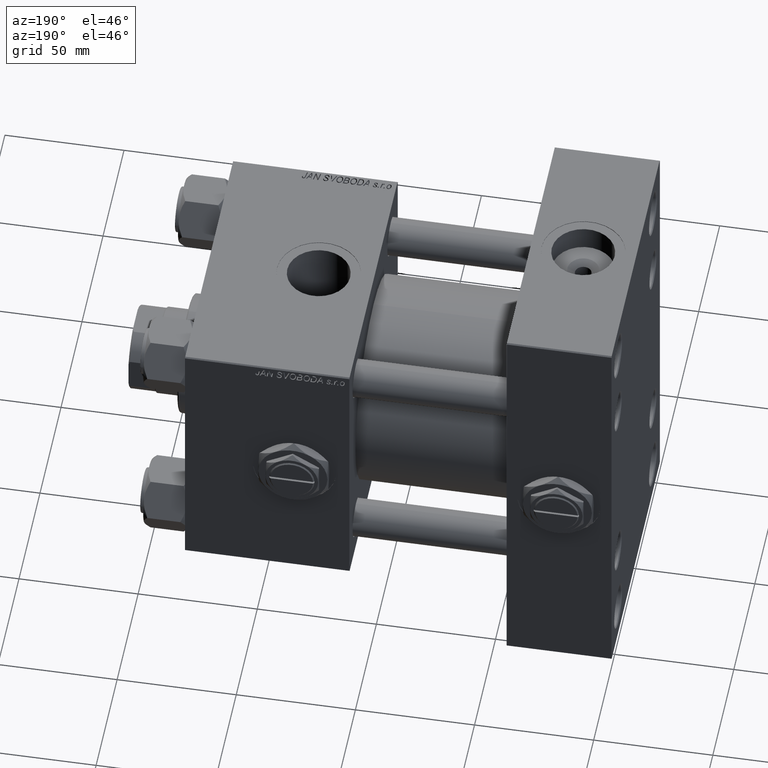
[diagram: clean part render]
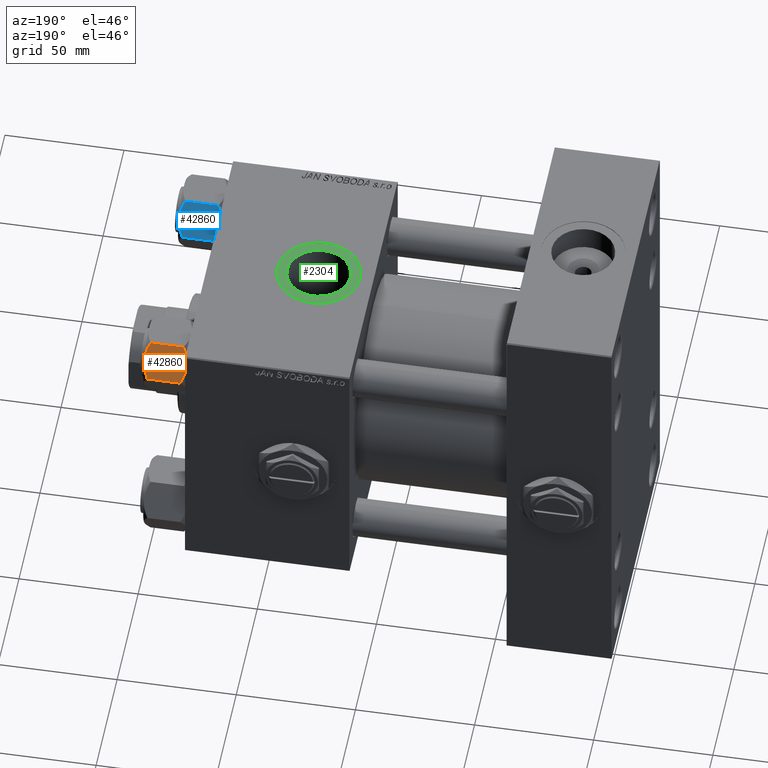
[diagram: same view with three faces highlighted in distinct colors, each labeled with its STEP entity id]
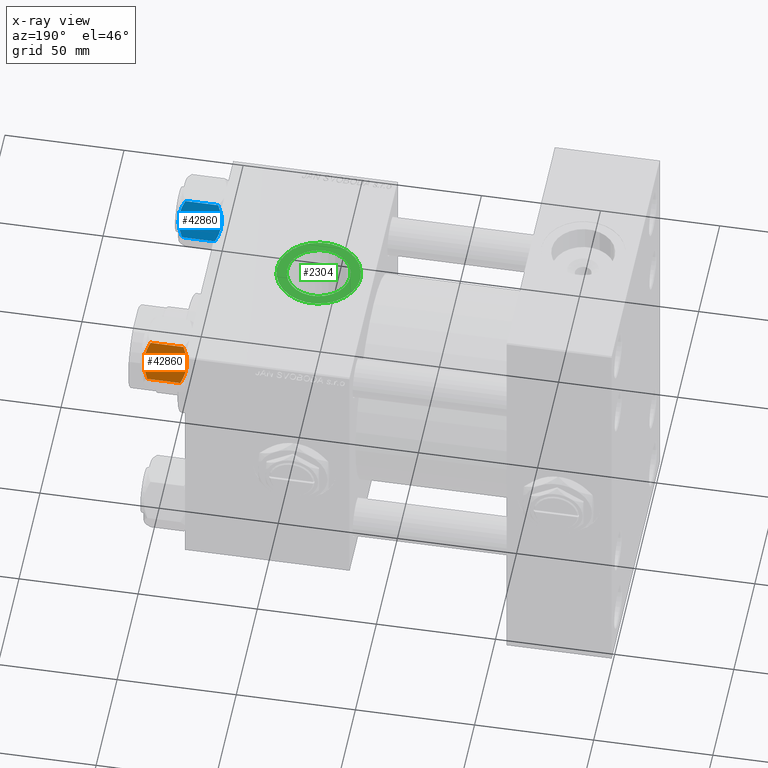
[diagram: x-ray of the same camera — body ghosted, the three highlighted faces saturated]
A machine part, auxiliary view with three faces highlighted in distinct colors.
The next image is the same camera in x-ray (body ghosted, the three faces saturated) — at least one of them is partly hidden behind the body in this view.
Their STEP definitions:

[orange] entity #42860 — the highlighted planar face has unit normal (-0, -0.866, -0.5).
#227 = CARTESIAN_POINT ( 'NONE',  ( 7.810000000000001386, 13.52731680711293905, -1.999999999999998224 ) ) ;
#1528 = DIRECTION ( 'NONE',  ( 0.4999999999999998890, -0.8660254037844385966, 0.000000000000000000 ) ) ;
#2597 = VERTEX_POINT ( 'NONE', #33263 ) ;
#3701 = ORIENTED_EDGE ( 'NONE', *, *, #20594, .F. ) ;
#3955 = LINE ( 'NONE', #19903, #50838 ) ;
#3990 = VERTEX_POINT ( 'NONE', #39805 ) ;
#4371 = VERTEX_POINT ( 'NONE', #27316 ) ;
#4507 = VECTOR ( 'NONE', #25929, 999.9999999999998863 ) ;
#5525 = CARTESIAN_POINT ( 'NONE',  ( 7.903528262322689457, 13.36532110482641045, -2.000000000000000000 ) ) ;
#6125 = B_SPLINE_CURVE_WITH_KNOTS ( 'NONE', 3,
 ( #35774, #51964, #15577, #32054, #48246, #31791, #8386, #39494 ),
 .UNSPECIFIED., .F., .F.,
 ( 4, 2, 2, 4 ),
 ( 0.007890825462474418753, 0.01181022244528552589, 0.01376992093669107686, 0.01572961942809662783 ),
 .UNSPECIFIED. ) ;
#7140 = ORIENTED_EDGE ( 'NONE', *, *, #36234, .F. ) ;
#7462 = CARTESIAN_POINT ( 'NONE',  ( 10.06459418565413166, 9.622245127110598872, -17.61639331488792948 ) ) ;
#8080 = ORIENTED_EDGE ( 'NONE', *, *, #32622, .F. ) ;
#8386 = CARTESIAN_POINT ( 'NONE',  ( 8.202637790192657263, 12.84724820552769486, -1.706311779141446383 ) ) ;
#9178 = CARTESIAN_POINT ( 'NONE',  ( 13.36540581434586628, 3.905071680002331735, -0.3836066851120656374 ) ) ;
#9448 = CARTESIAN_POINT ( 'NONE',  ( 12.38621571200405569, 5.601078687526934274, -0.05089381635302299423 ) ) ;
#9717 = CARTESIAN_POINT ( 'NONE',  ( 14.31545111198821019, 2.259544954993908394, -0.9142282604026981119 ) ) ;
#10934 = CARTESIAN_POINT ( 'NONE',  ( 11.04378428799595468, 7.926238119586002995, -17.94910618364697541 ) ) ;
#11972 = CARTESIAN_POINT ( 'NONE',  ( 11.71499999999999453, 6.763658403556462417, -18.00000000000000000 ) ) ;
#12416 = CARTESIAN_POINT ( 'NONE',  ( 7.810000000000000497, 13.52731680711293905, -16.00000000000000000 ) ) ;
#12526 = VERTEX_POINT ( 'NONE', #45373 ) ;
#12637 = VERTEX_POINT ( 'NONE', #12416 ) ;
#12934 = LINE ( 'NONE', #17965, #4507 ) ;
#13029 = LINE ( 'NONE', #24718, #29748 ) ;
#13052 = LINE ( 'NONE', #29243, #27218 ) ;
#14016 = FACE_OUTER_BOUND ( 'NONE', #30373, .T. ) ;
#14894 = B_SPLINE_CURVE_WITH_KNOTS ( 'NONE', 3,
 ( #29634, #49543, #9717, #9178, #17679, #9448, #34173, #25913 ),
 .UNSPECIFIED., .F., .F.,
 ( 4, 2, 2, 4 ),
 ( 4.472842642021966394E-07, 0.003945636373369309190, 0.005918230917921864405, 0.007890825462474418753 ),
 .UNSPECIFIED. ) ;
#15577 = CARTESIAN_POINT ( 'NONE',  ( 10.40215497533438338, 9.037572688741340343, -0.1971866459924613291 ) ) ;
#17679 = CARTESIAN_POINT ( 'NONE',  ( 13.04337073483127973, 4.462852799541090043, -0.2430846701013048838 ) ) ;
#17965 = CARTESIAN_POINT ( 'NONE',  ( 7.810000000000001386, 13.52731680711293905, -1.999999999999998224 ) ) ;
#19189 = AXIS2_PLACEMENT_3D ( 'NONE', #46413, #26233, #1528 ) ;
#19903 = CARTESIAN_POINT ( 'NONE',  ( 15.62000000000000455, -1.379485931020374819E-15, -18.00000000000000000 ) ) ;
#20594 = EDGE_CURVE ( 'NONE', #23821, #28786, #24663, .T. ) ;
#20987 = ORIENTED_EDGE ( 'NONE', *, *, #29092, .F. ) ;
#21137 = CARTESIAN_POINT ( 'NONE',  ( 7.810000000000001386, 13.52731680711293905, -16.00000000000000000 ) ) ;
#22677 = EDGE_CURVE ( 'NONE', #12637, #2597, #13029, .T. ) ;
#23821 = VERTEX_POINT ( 'NONE', #34186 ) ;
#24663 = B_SPLINE_CURVE_WITH_KNOTS ( 'NONE', 3,
 ( #11972, #40373, #35872, #24697, #40900, #32674, #40636, #44358 ),
 .UNSPECIFIED., .F., .F.,
 ( 4, 2, 2, 4 ),
 ( 0.007890825462474394467, 0.01181022244528549814, 0.01376992093669104911, 0.01572961942809660008 ),
 .UNSPECIFIED. ) ;
#24697 = CARTESIAN_POINT ( 'NONE',  ( 13.99051971937273464, 2.822342635978018599, -17.26828031537187513 ) ) ;
#24718 = CARTESIAN_POINT ( 'NONE',  ( 7.810000000000001386, 13.52731680711293905, -16.00000000000000000 ) ) ;
#25191 = EDGE_CURVE ( 'NONE', #37859, #50364, #44577, .T. ) ;
#25255 = DIRECTION ( 'NONE',  ( -0.000000000000000000, -0.000000000000000000, 1.000000000000000000 ) ) ;
#25669 = LINE ( 'NONE', #21137, #35922 ) ;
#25913 = CARTESIAN_POINT ( 'NONE',  ( 11.71499999999999808, 6.763658403556465082, 0.000000000000000000 ) ) ;
#25929 = DIRECTION ( 'NONE',  ( -0.4999999999999999445, 0.8660254037844387076, 0.000000000000000000 ) ) ;
#26233 = DIRECTION ( 'NONE',  ( -0.8660254037844387076, -0.4999999999999999445, 0.000000000000000000 ) ) ;
#26506 = ORIENTED_EDGE ( 'NONE', *, *, #25191, .F. ) ;
#27218 = VECTOR ( 'NONE', #25255, 1000.000000000000000 ) ;
#27316 = CARTESIAN_POINT ( 'NONE',  ( 11.71499999999999808, 6.763658403556465082, 0.000000000000000000 ) ) ;
#28786 = VERTEX_POINT ( 'NONE', #29878 ) ;
#29092 = EDGE_CURVE ( 'NONE', #2597, #23821, #38397, .T. ) ;
#29243 = CARTESIAN_POINT ( 'NONE',  ( 7.810000000000001386, 13.52731680711293905, -18.00000000000000000 ) ) ;
#29634 = CARTESIAN_POINT ( 'NONE',  ( 15.52647173767731736, 0.1619957022865213259, -2.000000000000000000 ) ) ;
#29748 = VECTOR ( 'NONE', #41175, 999.9999999999998863 ) ;
#29878 = CARTESIAN_POINT ( 'NONE',  ( 15.52647173767731736, 0.1619957022865213259, -16.00000000000000000 ) ) ;
#30089 = CARTESIAN_POINT ( 'NONE',  ( 15.62000000000000455, -1.379485931020374819E-15, -1.999999999999998224 ) ) ;
#30373 = EDGE_LOOP ( 'NONE', ( #31005, #46711, #8080, #7140, #39328, #26506, #32528, #41468, #3701, #20987 ) ) ;
#31005 = ORIENTED_EDGE ( 'NONE', *, *, #22677, .F. ) ;
#31791 = CARTESIAN_POINT ( 'NONE',  ( 8.506059550806631009, 12.32170630002228506, -1.434462921875004460 ) ) ;
#32054 = CARTESIAN_POINT ( 'NONE',  ( 9.439480280627266851, 10.70497417113491245, -0.7317196846281172062 ) ) ;
#32528 = ORIENTED_EDGE ( 'NONE', *, *, #47686, .F. ) ;
#32622 = EDGE_CURVE ( 'NONE', #48800, #12526, #12934, .T. ) ;
#32637 = EDGE_CURVE ( 'NONE', #28786, #3990, #25669, .T. ) ;
#32674 = CARTESIAN_POINT ( 'NONE',  ( 14.92394044919337937, 1.205610507090647987, -16.56553707812500065 ) ) ;
#33263 = CARTESIAN_POINT ( 'NONE',  ( 7.903528262322689457, 13.36532110482641045, -16.00000000000000000 ) ) ;
#34173 = CARTESIAN_POINT ( 'NONE',  ( 12.04818928091285990, 6.186557640478066666, -6.520459627963604010E-15 ) ) ;
#34186 = CARTESIAN_POINT ( 'NONE',  ( 11.71499999999999453, 6.763658403556462417, -18.00000000000000000 ) ) ;
#34856 = CARTESIAN_POINT ( 'NONE',  ( 9.114548888011798411, 11.26777185211902221, -17.08577173959729478 ) ) ;
#35622 = CARTESIAN_POINT ( 'NONE',  ( 8.502393313253767460, 12.32805640973646710, -16.58801072835993295 ) ) ;
#35774 = CARTESIAN_POINT ( 'NONE',  ( 11.71499999999999808, 6.763658403556465082, 0.000000000000000000 ) ) ;
#35854 = DIRECTION ( 'NONE',  ( -0.000000000000000000, -0.000000000000000000, 1.000000000000000000 ) ) ;
#35872 = CARTESIAN_POINT ( 'NONE',  ( 13.02784502466562877, 4.489744118371592485, -17.80281335400753662 ) ) ;
#35922 = VECTOR ( 'NONE', #49556, 999.9999999999998863 ) ;
#36234 = EDGE_CURVE ( 'NONE', #4371, #48800, #6125, .T. ) ;
#37859 = VERTEX_POINT ( 'NONE', #30089 ) ;
#37921 = PLANE ( 'NONE',  #19189 ) ;
#38397 = B_SPLINE_CURVE_WITH_KNOTS ( 'NONE', 3,
 ( #43593, #35622, #34856, #7462, #51547, #10934, #51816, #51037 ),
 .UNSPECIFIED., .F., .F.,
 ( 4, 2, 2, 4 ),
 ( 4.472842641813524291E-07, 0.003945636373369291842, 0.005918230917921843588, 0.007890825462474394467 ),
 .UNSPECIFIED. ) ;
#39328 = ORIENTED_EDGE ( 'NONE', *, *, #50880, .F. ) ;
#39369 = DIRECTION ( 'NONE',  ( -0.4999999999999999445, 0.8660254037844387076, 0.000000000000000000 ) ) ;
#39494 = CARTESIAN_POINT ( 'NONE',  ( 7.903528262322689457, 13.36532110482641045, -2.000000000000000000 ) ) ;
#39805 = CARTESIAN_POINT ( 'NONE',  ( 15.62000000000000455, -1.379485931020374819E-15, -16.00000000000000000 ) ) ;
#40373 = CARTESIAN_POINT ( 'NONE',  ( 12.37702203890362362, 5.617002596445057172, -17.99999999999999645 ) ) ;
#40471 = CARTESIAN_POINT ( 'NONE',  ( 15.52647173767731736, 0.1619957022865213259, -2.000000000000000000 ) ) ;
#40636 = CARTESIAN_POINT ( 'NONE',  ( 15.22736220980734778, 0.6800686015852424049, -16.29368822085855584 ) ) ;
#40900 = CARTESIAN_POINT ( 'NONE',  ( 14.30591678195075467, 2.276058899034909544, -17.05261278537717828 ) ) ;
#41175 = DIRECTION ( 'NONE',  ( 0.4999999999999999445, -0.8660254037844387076, 0.000000000000000000 ) ) ;
#41468 = ORIENTED_EDGE ( 'NONE', *, *, #32637, .F. ) ;
#42860 = ADVANCED_FACE ( 'NONE', ( #14016 ), #37921, .F. ) ;
#43593 = CARTESIAN_POINT ( 'NONE',  ( 7.903528262322689457, 13.36532110482641045, -16.00000000000000000 ) ) ;
#44358 = CARTESIAN_POINT ( 'NONE',  ( 15.52647173767731736, 0.1619957022865213259, -16.00000000000000000 ) ) ;
#44577 = LINE ( 'NONE', #227, #51057 ) ;
#45373 = CARTESIAN_POINT ( 'NONE',  ( 7.810000000000000497, 13.52731680711293905, -1.999999999999998224 ) ) ;
#46413 = CARTESIAN_POINT ( 'NONE',  ( 7.810000000000001386, 13.52731680711293905, -18.00000000000000000 ) ) ;
#46711 = ORIENTED_EDGE ( 'NONE', *, *, #52352, .T. ) ;
#47686 = EDGE_CURVE ( 'NONE', #3990, #37859, #3955, .T. ) ;
#48246 = CARTESIAN_POINT ( 'NONE',  ( 9.124083218049248600, 11.25125790807802062, -0.9473872146228176083 ) ) ;
#48800 = VERTEX_POINT ( 'NONE', #5525 ) ;
#49543 = CARTESIAN_POINT ( 'NONE',  ( 14.92760668674624469, 1.199260397376465725, -1.411989271640069710 ) ) ;
#49556 = DIRECTION ( 'NONE',  ( 0.4999999999999999445, -0.8660254037844387076, 0.000000000000000000 ) ) ;
#50364 = VERTEX_POINT ( 'NONE', #40471 ) ;
#50838 = VECTOR ( 'NONE', #35854, 1000.000000000000000 ) ;
#50880 = EDGE_CURVE ( 'NONE', #50364, #4371, #14894, .T. ) ;
#51037 = CARTESIAN_POINT ( 'NONE',  ( 11.71499999999999453, 6.763658403556462417, -18.00000000000000000 ) ) ;
#51057 = VECTOR ( 'NONE', #39369, 999.9999999999998863 ) ;
#51547 = CARTESIAN_POINT ( 'NONE',  ( 10.38662926516872886, 9.064464007571846338, -17.75691532989869614 ) ) ;
#51816 = CARTESIAN_POINT ( 'NONE',  ( 11.38181071908714692, 7.340759166634869715, -17.99999999999998224 ) ) ;
#51964 = CARTESIAN_POINT ( 'NONE',  ( 11.05297796109638320, 7.910314210667882762, -6.479802046495397594E-15 ) ) ;
#52352 = EDGE_CURVE ( 'NONE', #12637, #12526, #13052, .T. ) ;

[blue] entity #42860 — the highlighted planar face has unit normal (0, -0.866, -0.5).
#227 = CARTESIAN_POINT ( 'NONE',  ( 7.810000000000001386, 13.52731680711293905, -1.999999999999998224 ) ) ;
#1528 = DIRECTION ( 'NONE',  ( 0.4999999999999998890, -0.8660254037844385966, 0.000000000000000000 ) ) ;
#2597 = VERTEX_POINT ( 'NONE', #33263 ) ;
#3701 = ORIENTED_EDGE ( 'NONE', *, *, #20594, .F. ) ;
#3955 = LINE ( 'NONE', #19903, #50838 ) ;
#3990 = VERTEX_POINT ( 'NONE', #39805 ) ;
#4371 = VERTEX_POINT ( 'NONE', #27316 ) ;
#4507 = VECTOR ( 'NONE', #25929, 999.9999999999998863 ) ;
#5525 = CARTESIAN_POINT ( 'NONE',  ( 7.903528262322689457, 13.36532110482641045, -2.000000000000000000 ) ) ;
#6125 = B_SPLINE_CURVE_WITH_KNOTS ( 'NONE', 3,
 ( #35774, #51964, #15577, #32054, #48246, #31791, #8386, #39494 ),
 .UNSPECIFIED., .F., .F.,
 ( 4, 2, 2, 4 ),
 ( 0.007890825462474418753, 0.01181022244528552589, 0.01376992093669107686, 0.01572961942809662783 ),
 .UNSPECIFIED. ) ;
#7140 = ORIENTED_EDGE ( 'NONE', *, *, #36234, .F. ) ;
#7462 = CARTESIAN_POINT ( 'NONE',  ( 10.06459418565413166, 9.622245127110598872, -17.61639331488792948 ) ) ;
#8080 = ORIENTED_EDGE ( 'NONE', *, *, #32622, .F. ) ;
#8386 = CARTESIAN_POINT ( 'NONE',  ( 8.202637790192657263, 12.84724820552769486, -1.706311779141446383 ) ) ;
#9178 = CARTESIAN_POINT ( 'NONE',  ( 13.36540581434586628, 3.905071680002331735, -0.3836066851120656374 ) ) ;
#9448 = CARTESIAN_POINT ( 'NONE',  ( 12.38621571200405569, 5.601078687526934274, -0.05089381635302299423 ) ) ;
#9717 = CARTESIAN_POINT ( 'NONE',  ( 14.31545111198821019, 2.259544954993908394, -0.9142282604026981119 ) ) ;
#10934 = CARTESIAN_POINT ( 'NONE',  ( 11.04378428799595468, 7.926238119586002995, -17.94910618364697541 ) ) ;
#11972 = CARTESIAN_POINT ( 'NONE',  ( 11.71499999999999453, 6.763658403556462417, -18.00000000000000000 ) ) ;
#12416 = CARTESIAN_POINT ( 'NONE',  ( 7.810000000000000497, 13.52731680711293905, -16.00000000000000000 ) ) ;
#12526 = VERTEX_POINT ( 'NONE', #45373 ) ;
#12637 = VERTEX_POINT ( 'NONE', #12416 ) ;
#12934 = LINE ( 'NONE', #17965, #4507 ) ;
#13029 = LINE ( 'NONE', #24718, #29748 ) ;
#13052 = LINE ( 'NONE', #29243, #27218 ) ;
#14016 = FACE_OUTER_BOUND ( 'NONE', #30373, .T. ) ;
#14894 = B_SPLINE_CURVE_WITH_KNOTS ( 'NONE', 3,
 ( #29634, #49543, #9717, #9178, #17679, #9448, #34173, #25913 ),
 .UNSPECIFIED., .F., .F.,
 ( 4, 2, 2, 4 ),
 ( 4.472842642021966394E-07, 0.003945636373369309190, 0.005918230917921864405, 0.007890825462474418753 ),
 .UNSPECIFIED. ) ;
#15577 = CARTESIAN_POINT ( 'NONE',  ( 10.40215497533438338, 9.037572688741340343, -0.1971866459924613291 ) ) ;
#17679 = CARTESIAN_POINT ( 'NONE',  ( 13.04337073483127973, 4.462852799541090043, -0.2430846701013048838 ) ) ;
#17965 = CARTESIAN_POINT ( 'NONE',  ( 7.810000000000001386, 13.52731680711293905, -1.999999999999998224 ) ) ;
#19189 = AXIS2_PLACEMENT_3D ( 'NONE', #46413, #26233, #1528 ) ;
#19903 = CARTESIAN_POINT ( 'NONE',  ( 15.62000000000000455, -1.379485931020374819E-15, -18.00000000000000000 ) ) ;
#20594 = EDGE_CURVE ( 'NONE', #23821, #28786, #24663, .T. ) ;
#20987 = ORIENTED_EDGE ( 'NONE', *, *, #29092, .F. ) ;
#21137 = CARTESIAN_POINT ( 'NONE',  ( 7.810000000000001386, 13.52731680711293905, -16.00000000000000000 ) ) ;
#22677 = EDGE_CURVE ( 'NONE', #12637, #2597, #13029, .T. ) ;
#23821 = VERTEX_POINT ( 'NONE', #34186 ) ;
#24663 = B_SPLINE_CURVE_WITH_KNOTS ( 'NONE', 3,
 ( #11972, #40373, #35872, #24697, #40900, #32674, #40636, #44358 ),
 .UNSPECIFIED., .F., .F.,
 ( 4, 2, 2, 4 ),
 ( 0.007890825462474394467, 0.01181022244528549814, 0.01376992093669104911, 0.01572961942809660008 ),
 .UNSPECIFIED. ) ;
#24697 = CARTESIAN_POINT ( 'NONE',  ( 13.99051971937273464, 2.822342635978018599, -17.26828031537187513 ) ) ;
#24718 = CARTESIAN_POINT ( 'NONE',  ( 7.810000000000001386, 13.52731680711293905, -16.00000000000000000 ) ) ;
#25191 = EDGE_CURVE ( 'NONE', #37859, #50364, #44577, .T. ) ;
#25255 = DIRECTION ( 'NONE',  ( -0.000000000000000000, -0.000000000000000000, 1.000000000000000000 ) ) ;
#25669 = LINE ( 'NONE', #21137, #35922 ) ;
#25913 = CARTESIAN_POINT ( 'NONE',  ( 11.71499999999999808, 6.763658403556465082, 0.000000000000000000 ) ) ;
#25929 = DIRECTION ( 'NONE',  ( -0.4999999999999999445, 0.8660254037844387076, 0.000000000000000000 ) ) ;
#26233 = DIRECTION ( 'NONE',  ( -0.8660254037844387076, -0.4999999999999999445, 0.000000000000000000 ) ) ;
#26506 = ORIENTED_EDGE ( 'NONE', *, *, #25191, .F. ) ;
#27218 = VECTOR ( 'NONE', #25255, 1000.000000000000000 ) ;
#27316 = CARTESIAN_POINT ( 'NONE',  ( 11.71499999999999808, 6.763658403556465082, 0.000000000000000000 ) ) ;
#28786 = VERTEX_POINT ( 'NONE', #29878 ) ;
#29092 = EDGE_CURVE ( 'NONE', #2597, #23821, #38397, .T. ) ;
#29243 = CARTESIAN_POINT ( 'NONE',  ( 7.810000000000001386, 13.52731680711293905, -18.00000000000000000 ) ) ;
#29634 = CARTESIAN_POINT ( 'NONE',  ( 15.52647173767731736, 0.1619957022865213259, -2.000000000000000000 ) ) ;
#29748 = VECTOR ( 'NONE', #41175, 999.9999999999998863 ) ;
#29878 = CARTESIAN_POINT ( 'NONE',  ( 15.52647173767731736, 0.1619957022865213259, -16.00000000000000000 ) ) ;
#30089 = CARTESIAN_POINT ( 'NONE',  ( 15.62000000000000455, -1.379485931020374819E-15, -1.999999999999998224 ) ) ;
#30373 = EDGE_LOOP ( 'NONE', ( #31005, #46711, #8080, #7140, #39328, #26506, #32528, #41468, #3701, #20987 ) ) ;
#31005 = ORIENTED_EDGE ( 'NONE', *, *, #22677, .F. ) ;
#31791 = CARTESIAN_POINT ( 'NONE',  ( 8.506059550806631009, 12.32170630002228506, -1.434462921875004460 ) ) ;
#32054 = CARTESIAN_POINT ( 'NONE',  ( 9.439480280627266851, 10.70497417113491245, -0.7317196846281172062 ) ) ;
#32528 = ORIENTED_EDGE ( 'NONE', *, *, #47686, .F. ) ;
#32622 = EDGE_CURVE ( 'NONE', #48800, #12526, #12934, .T. ) ;
#32637 = EDGE_CURVE ( 'NONE', #28786, #3990, #25669, .T. ) ;
#32674 = CARTESIAN_POINT ( 'NONE',  ( 14.92394044919337937, 1.205610507090647987, -16.56553707812500065 ) ) ;
#33263 = CARTESIAN_POINT ( 'NONE',  ( 7.903528262322689457, 13.36532110482641045, -16.00000000000000000 ) ) ;
#34173 = CARTESIAN_POINT ( 'NONE',  ( 12.04818928091285990, 6.186557640478066666, -6.520459627963604010E-15 ) ) ;
#34186 = CARTESIAN_POINT ( 'NONE',  ( 11.71499999999999453, 6.763658403556462417, -18.00000000000000000 ) ) ;
#34856 = CARTESIAN_POINT ( 'NONE',  ( 9.114548888011798411, 11.26777185211902221, -17.08577173959729478 ) ) ;
#35622 = CARTESIAN_POINT ( 'NONE',  ( 8.502393313253767460, 12.32805640973646710, -16.58801072835993295 ) ) ;
#35774 = CARTESIAN_POINT ( 'NONE',  ( 11.71499999999999808, 6.763658403556465082, 0.000000000000000000 ) ) ;
#35854 = DIRECTION ( 'NONE',  ( -0.000000000000000000, -0.000000000000000000, 1.000000000000000000 ) ) ;
#35872 = CARTESIAN_POINT ( 'NONE',  ( 13.02784502466562877, 4.489744118371592485, -17.80281335400753662 ) ) ;
#35922 = VECTOR ( 'NONE', #49556, 999.9999999999998863 ) ;
#36234 = EDGE_CURVE ( 'NONE', #4371, #48800, #6125, .T. ) ;
#37859 = VERTEX_POINT ( 'NONE', #30089 ) ;
#37921 = PLANE ( 'NONE',  #19189 ) ;
#38397 = B_SPLINE_CURVE_WITH_KNOTS ( 'NONE', 3,
 ( #43593, #35622, #34856, #7462, #51547, #10934, #51816, #51037 ),
 .UNSPECIFIED., .F., .F.,
 ( 4, 2, 2, 4 ),
 ( 4.472842641813524291E-07, 0.003945636373369291842, 0.005918230917921843588, 0.007890825462474394467 ),
 .UNSPECIFIED. ) ;
#39328 = ORIENTED_EDGE ( 'NONE', *, *, #50880, .F. ) ;
#39369 = DIRECTION ( 'NONE',  ( -0.4999999999999999445, 0.8660254037844387076, 0.000000000000000000 ) ) ;
#39494 = CARTESIAN_POINT ( 'NONE',  ( 7.903528262322689457, 13.36532110482641045, -2.000000000000000000 ) ) ;
#39805 = CARTESIAN_POINT ( 'NONE',  ( 15.62000000000000455, -1.379485931020374819E-15, -16.00000000000000000 ) ) ;
#40373 = CARTESIAN_POINT ( 'NONE',  ( 12.37702203890362362, 5.617002596445057172, -17.99999999999999645 ) ) ;
#40471 = CARTESIAN_POINT ( 'NONE',  ( 15.52647173767731736, 0.1619957022865213259, -2.000000000000000000 ) ) ;
#40636 = CARTESIAN_POINT ( 'NONE',  ( 15.22736220980734778, 0.6800686015852424049, -16.29368822085855584 ) ) ;
#40900 = CARTESIAN_POINT ( 'NONE',  ( 14.30591678195075467, 2.276058899034909544, -17.05261278537717828 ) ) ;
#41175 = DIRECTION ( 'NONE',  ( 0.4999999999999999445, -0.8660254037844387076, 0.000000000000000000 ) ) ;
#41468 = ORIENTED_EDGE ( 'NONE', *, *, #32637, .F. ) ;
#42860 = ADVANCED_FACE ( 'NONE', ( #14016 ), #37921, .F. ) ;
#43593 = CARTESIAN_POINT ( 'NONE',  ( 7.903528262322689457, 13.36532110482641045, -16.00000000000000000 ) ) ;
#44358 = CARTESIAN_POINT ( 'NONE',  ( 15.52647173767731736, 0.1619957022865213259, -16.00000000000000000 ) ) ;
#44577 = LINE ( 'NONE', #227, #51057 ) ;
#45373 = CARTESIAN_POINT ( 'NONE',  ( 7.810000000000000497, 13.52731680711293905, -1.999999999999998224 ) ) ;
#46413 = CARTESIAN_POINT ( 'NONE',  ( 7.810000000000001386, 13.52731680711293905, -18.00000000000000000 ) ) ;
#46711 = ORIENTED_EDGE ( 'NONE', *, *, #52352, .T. ) ;
#47686 = EDGE_CURVE ( 'NONE', #3990, #37859, #3955, .T. ) ;
#48246 = CARTESIAN_POINT ( 'NONE',  ( 9.124083218049248600, 11.25125790807802062, -0.9473872146228176083 ) ) ;
#48800 = VERTEX_POINT ( 'NONE', #5525 ) ;
#49543 = CARTESIAN_POINT ( 'NONE',  ( 14.92760668674624469, 1.199260397376465725, -1.411989271640069710 ) ) ;
#49556 = DIRECTION ( 'NONE',  ( 0.4999999999999999445, -0.8660254037844387076, 0.000000000000000000 ) ) ;
#50364 = VERTEX_POINT ( 'NONE', #40471 ) ;
#50838 = VECTOR ( 'NONE', #35854, 1000.000000000000000 ) ;
#50880 = EDGE_CURVE ( 'NONE', #50364, #4371, #14894, .T. ) ;
#51037 = CARTESIAN_POINT ( 'NONE',  ( 11.71499999999999453, 6.763658403556462417, -18.00000000000000000 ) ) ;
#51057 = VECTOR ( 'NONE', #39369, 999.9999999999998863 ) ;
#51547 = CARTESIAN_POINT ( 'NONE',  ( 10.38662926516872886, 9.064464007571846338, -17.75691532989869614 ) ) ;
#51816 = CARTESIAN_POINT ( 'NONE',  ( 11.38181071908714692, 7.340759166634869715, -17.99999999999998224 ) ) ;
#51964 = CARTESIAN_POINT ( 'NONE',  ( 11.05297796109638320, 7.910314210667882762, -6.479802046495397594E-15 ) ) ;
#52352 = EDGE_CURVE ( 'NONE', #12637, #12526, #13052, .T. ) ;

[green] entity #2304 — the highlighted planar face has unit normal (0, 0, 1).
#2304 = ADVANCED_FACE ( 'NONE', ( #24043, #40245 ), #20047, .T. ) ;
#2976 = DIRECTION ( 'NONE',  ( 0.000000000000000000, 0.000000000000000000, 1.000000000000000000 ) ) ;
#3900 = AXIS2_PLACEMENT_3D ( 'NONE', #48724, #36257, #45002 ) ;
#4154 = CARTESIAN_POINT ( 'NONE',  ( 119.7800000000000011, -5.319910835434427226E-15, 57.30000000000000426 ) ) ;
#4897 = CIRCLE ( 'NONE', #34634, 17.50000000000001421 ) ;
#6848 = CIRCLE ( 'NONE', #36538, 13.22000000000000952 ) ;
#11223 = CARTESIAN_POINT ( 'NONE',  ( 133.0000000000000000, -6.938893903907229955E-15, 57.30000000000000426 ) ) ;
#12098 = VERTEX_POINT ( 'NONE', #12807 ) ;
#12351 = ORIENTED_EDGE ( 'NONE', *, *, #50958, .F. ) ;
#12622 = VERTEX_POINT ( 'NONE', #24097 ) ;
#12807 = CARTESIAN_POINT ( 'NONE',  ( 115.4999999999999858, -4.795762005399357763E-15, 57.30000000000000426 ) ) ;
#13355 = DIRECTION ( 'NONE',  ( 1.000000000000000000, 0.000000000000000000, 0.000000000000000000 ) ) ;
#13438 = CARTESIAN_POINT ( 'NONE',  ( 133.0000000000000000, -6.938893903907229955E-15, 57.30000000000000426 ) ) ;
#13708 = DIRECTION ( 'NONE',  ( 1.000000000000000000, 0.000000000000000000, 0.000000000000000000 ) ) ;
#19173 = DIRECTION ( 'NONE',  ( 1.000000000000000000, 0.000000000000000000, 0.000000000000000000 ) ) ;
#19358 = DIRECTION ( 'NONE',  ( 1.000000000000000000, 0.000000000000000000, 0.000000000000000000 ) ) ;
#20047 = PLANE ( 'NONE',  #3900 ) ;
#22461 = EDGE_LOOP ( 'NONE', ( #38335, #44187 ) ) ;
#22927 = EDGE_CURVE ( 'NONE', #12622, #12098, #50985, .T. ) ;
#24043 = FACE_BOUND ( 'NONE', #27874, .T. ) ;
#24097 = CARTESIAN_POINT ( 'NONE',  ( 150.5000000000000284, -6.938893903907229955E-15, 57.30000000000000426 ) ) ;
#24275 = AXIS2_PLACEMENT_3D ( 'NONE', #11223, #2976, #19173 ) ;
#26811 = CARTESIAN_POINT ( 'NONE',  ( 133.0000000000000000, -6.938893903907229955E-15, 57.30000000000000426 ) ) ;
#27219 = AXIS2_PLACEMENT_3D ( 'NONE', #26811, #47782, #19358 ) ;
#27874 = EDGE_LOOP ( 'NONE', ( #12351, #33910 ) ) ;
#33546 = CARTESIAN_POINT ( 'NONE',  ( 133.0000000000000000, -6.938893903907229955E-15, 57.30000000000000426 ) ) ;
#33910 = ORIENTED_EDGE ( 'NONE', *, *, #38811, .F. ) ;
#34634 = AXIS2_PLACEMENT_3D ( 'NONE', #33546, #39048, #13355 ) ;
#36257 = DIRECTION ( 'NONE',  ( 0.000000000000000000, 0.000000000000000000, 1.000000000000000000 ) ) ;
#36538 = AXIS2_PLACEMENT_3D ( 'NONE', #13438, #46099, #13708 ) ;
#37975 = CARTESIAN_POINT ( 'NONE',  ( 146.2200000000000273, -6.938893903907229955E-15, 57.30000000000000426 ) ) ;
#38335 = ORIENTED_EDGE ( 'NONE', *, *, #22927, .T. ) ;
#38811 = EDGE_CURVE ( 'NONE', #47508, #40677, #47179, .T. ) ;
#39048 = DIRECTION ( 'NONE',  ( 0.000000000000000000, 0.000000000000000000, 1.000000000000000000 ) ) ;
#40245 = FACE_OUTER_BOUND ( 'NONE', #22461, .T. ) ;
#40677 = VERTEX_POINT ( 'NONE', #37975 ) ;
#43501 = EDGE_CURVE ( 'NONE', #12098, #12622, #4897, .T. ) ;
#44187 = ORIENTED_EDGE ( 'NONE', *, *, #43501, .T. ) ;
#45002 = DIRECTION ( 'NONE',  ( 1.000000000000000000, 0.000000000000000000, -0.000000000000000000 ) ) ;
#46099 = DIRECTION ( 'NONE',  ( 0.000000000000000000, 0.000000000000000000, 1.000000000000000000 ) ) ;
#47179 = CIRCLE ( 'NONE', #24275, 13.22000000000000952 ) ;
#47508 = VERTEX_POINT ( 'NONE', #4154 ) ;
#47782 = DIRECTION ( 'NONE',  ( 0.000000000000000000, 0.000000000000000000, 1.000000000000000000 ) ) ;
#48724 = CARTESIAN_POINT ( 'NONE',  ( 133.0000000000000000, -6.938893903907229955E-15, 57.30000000000000426 ) ) ;
#50958 = EDGE_CURVE ( 'NONE', #40677, #47508, #6848, .T. ) ;
#50985 = CIRCLE ( 'NONE', #27219, 17.50000000000001421 ) ;